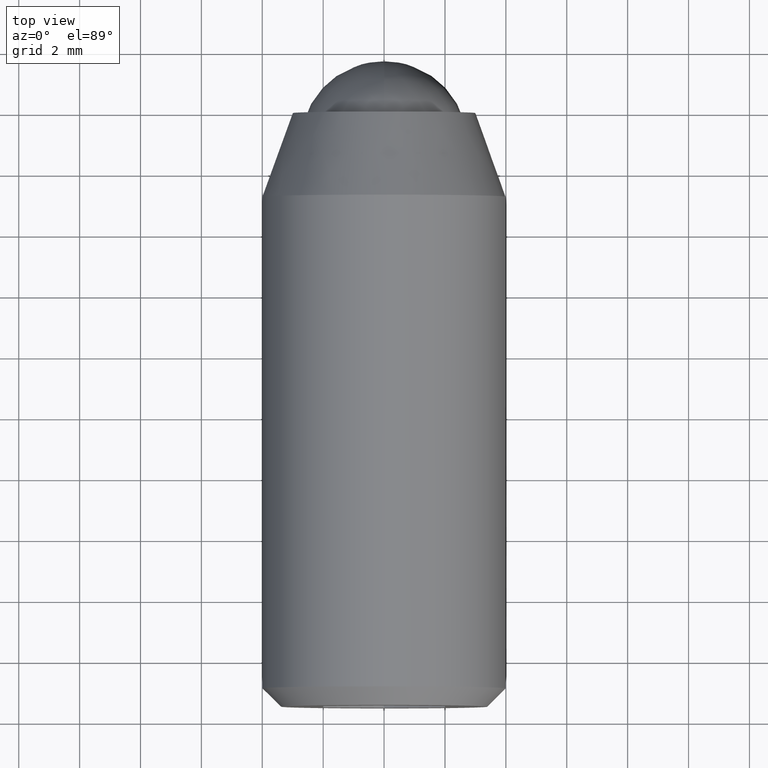
[diagram: clean part render]
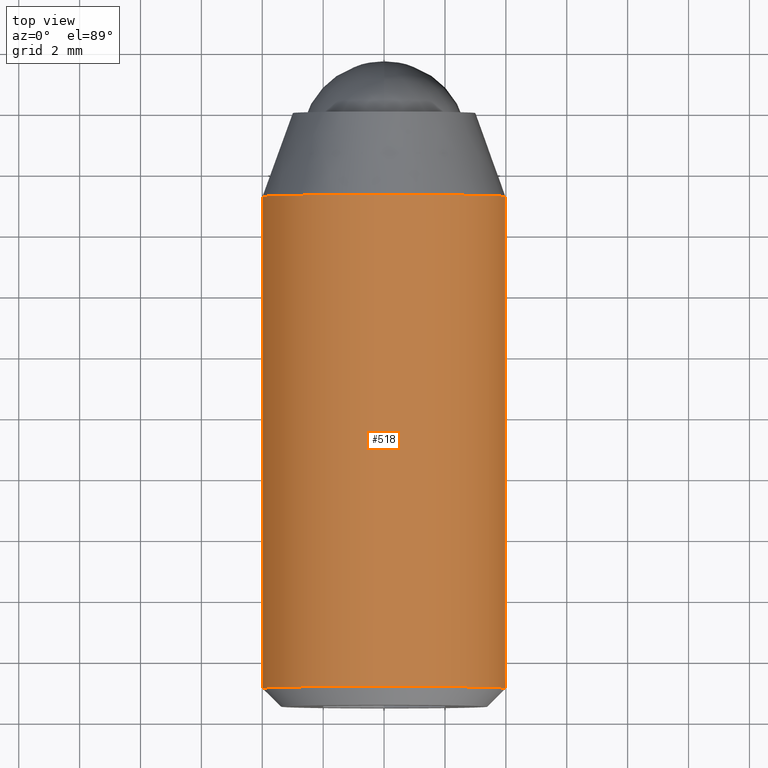
[diagram: same view with one face highlighted and labeled with its STEP entity id]
A machine part, top view. The second image highlights one B-rep face of the part: STEP entity #518.
In plain terms, the highlighted face is a freeform B-spline surface patch.
Its self-contained STEP definition (entity closure, byte-faithful):
#309=CARTESIAN_POINT('',(-3.992539385356825,-2.747476995765231,0.244190999084494));
#310=VERTEX_POINT('',#309);
#316=CARTESIAN_POINT('',(0.0,-2.747477000000000,3.999999999999999));
#317=VERTEX_POINT('',#316);
#318=CARTESIAN_POINT('',(0.0,-2.747477000000000,3.999999999999999));
#319=CARTESIAN_POINT('',(-3.762827250393930,-2.747477000000000,4.000000000000000));
#320=CARTESIAN_POINT('',(-3.992539385356825,-2.747476995765231,0.244190999084494));
#328=(BOUNDED_CURVE()B_SPLINE_CURVE(2,(#318,#319,#320),.UNSPECIFIED.,.F.,.U.)B_SPLINE_CURVE_WITH_KNOTS((3,3),(0.500000000000000,0.739333098763761),.UNSPECIFIED.)CURVE()GEOMETRIC_REPRESENTATION_ITEM()RATIONAL_B_SPLINE_CURVE((1.0,0.719603833337937,0.976072334265566))REPRESENTATION_ITEM(''));
#329=EDGE_CURVE('',#317,#310,#328,.T.);
#331=CARTESIAN_POINT('',(3.973877514733711,-2.747477000000000,0.456396207096037));
#332=VERTEX_POINT('',#331);
#333=CARTESIAN_POINT('',(3.973877514733711,-2.747477000000000,0.456396207096037));
#334=CARTESIAN_POINT('',(3.566897852045294,-2.747477000000000,3.999999999999999));
#335=CARTESIAN_POINT('',(0.0,-2.747477000000000,3.999999999999999));
#343=(BOUNDED_CURVE()B_SPLINE_CURVE(2,(#333,#334,#335),.UNSPECIFIED.,.F.,.U.)B_SPLINE_CURVE_WITH_KNOTS((3,3),(0.269767481110062,0.500000000000000),.UNSPECIFIED.)CURVE()GEOMETRIC_REPRESENTATION_ITEM()RATIONAL_B_SPLINE_CURVE((0.957344278464731,0.730265825867189,1.0))REPRESENTATION_ITEM(''));
#344=EDGE_CURVE('',#332,#317,#343,.T.);
#435=CARTESIAN_POINT('',(3.980316091158765,-2.343663925000000,0.400335821016026));
#436=CARTESIAN_POINT('',(3.977103598420194,-2.343663925000000,0.428306846225810));
#437=CARTESIAN_POINT('',(3.591260610344325,-2.343663924999999,3.787823839652829));
#438=CARTESIAN_POINT('',(0.244194158139428,-2.343663924999999,3.992539193687466));
#439=CARTESIAN_POINT('',(-3.748345035548039,-2.343663925000000,4.236733351826894));
#440=CARTESIAN_POINT('',(-3.994157945303674,-2.343663924999997,0.217727803162699));
#441=CARTESIAN_POINT('',(-3.995767831718254,-2.343663925000000,0.191406392951410));
#442=CARTESIAN_POINT('',(3.980316091158765,-19.313908401875008,0.400335821016026));
#443=CARTESIAN_POINT('',(3.977103598420194,-19.313908401874997,0.428306846225810));
#444=CARTESIAN_POINT('',(3.591260610344325,-19.313908401874997,3.787823839652829));
#445=CARTESIAN_POINT('',(0.244194158139428,-19.313908401875000,3.992539193687466));
#446=CARTESIAN_POINT('',(-3.748345035548039,-19.313908401875004,4.236733351826894));
#447=CARTESIAN_POINT('',(-3.994157945303674,-19.313908401874990,0.217727803162699));
#448=CARTESIAN_POINT('',(-3.995767831718254,-19.313908401875004,0.191406392951410));
#456=(BOUNDED_SURFACE()B_SPLINE_SURFACE(2,1,((#435,#442),(#436,#443),(#437,#444),(#438,#445),(#439,#446),(#440,#447),(#441,#448)),.UNSPECIFIED.,.F.,.F.,.U.)B_SPLINE_SURFACE_WITH_KNOTS((3,1,2,1,3),(2,2),(0.0,0.062304910480394,5.894431868693570,12.521848866663090,12.584150347148990),(0.0,16.970244476875010),.UNSPECIFIED.)GEOMETRIC_REPRESENTATION_ITEM()RATIONAL_B_SPLINE_SURFACE(((0.942326293533280,0.942326293533280),(0.940233622859939,0.940233622859939),(0.742253967444162,0.742253967444162),(1.0,1.0),(0.707106781186548,0.707106781186548),(1.002753362458097,1.002753362458097),(1.005506724916193,1.005506724916193)))REPRESENTATION_ITEM('')SURFACE());
#457=CARTESIAN_POINT('',(3.973876773741293,-18.899999999999999,0.456402658975039));
#458=VERTEX_POINT('',#457);
#459=CARTESIAN_POINT('',(0.0,-18.899999999999999,3.999999999999999));
#460=VERTEX_POINT('',#459);
#461=CARTESIAN_POINT('',(3.973876773741293,-18.900000000000002,0.456402658975039));
#462=CARTESIAN_POINT('',(3.566892022851084,-18.899999999999999,3.999999999999999));
#463=CARTESIAN_POINT('',(0.0,-18.899999999999999,3.999999999999999));
#471=(BOUNDED_CURVE()B_SPLINE_CURVE(2,(#461,#462,#463),.UNSPECIFIED.,.F.,.U.)B_SPLINE_CURVE_WITH_KNOTS((3,3),(0.269767755877767,0.500000000000000),.UNSPECIFIED.)CURVE()GEOMETRIC_REPRESENTATION_ITEM()RATIONAL_B_SPLINE_CURVE((0.957343736458379,0.730266147777579,1.0))REPRESENTATION_ITEM(''));
#472=EDGE_CURVE('',#458,#460,#471,.T.);
#473=ORIENTED_EDGE('',*,*,#472,.F.);
#474=CARTESIAN_POINT('',(3.973877514733711,-2.747477000000000,0.456396207096037));
#475=CARTESIAN_POINT('',(3.973876773741293,-18.899999999999999,0.456402658975039));
#476=QUASI_UNIFORM_CURVE('',1,(#474,#475),.UNSPECIFIED.,.F.,.U.);
#477=EDGE_CURVE('',#332,#458,#476,.T.);
#478=ORIENTED_EDGE('',*,*,#477,.F.);
#479=ORIENTED_EDGE('',*,*,#344,.T.);
#480=ORIENTED_EDGE('',*,*,#329,.T.);
#481=CARTESIAN_POINT('',(-3.992539218760148,-18.899999999999999,0.244193748204033));
#482=VERTEX_POINT('',#481);
#483=CARTESIAN_POINT('',(-3.992539385356825,-2.747476995765231,0.244190999084494));
#484=CARTESIAN_POINT('',(-3.992539218760148,-18.899999999999999,0.244193748204033));
#485=QUASI_UNIFORM_CURVE('',1,(#483,#484),.UNSPECIFIED.,.F.,.U.);
#486=EDGE_CURVE('',#310,#482,#485,.T.);
#487=ORIENTED_EDGE('',*,*,#486,.T.);
#488=CARTESIAN_POINT('',(-3.987669334934627,-18.899999999994701,0.313836382952172));
#489=VERTEX_POINT('',#488);
#490=CARTESIAN_POINT('',(-3.987669334934627,-18.899999999994701,0.313836382952172));
#491=CARTESIAN_POINT('',(-3.990408175777355,-18.899999999999999,0.279036110406021));
#492=CARTESIAN_POINT('',(-3.992539218760148,-18.899999999999995,0.244193748204032));
#500=(BOUNDED_CURVE()B_SPLINE_CURVE(2,(#490,#491,#492),.UNSPECIFIED.,.F.,.U.)B_SPLINE_CURVE_WITH_KNOTS((3,3),(0.736331300629296,0.739332997674577),.UNSPECIFIED.)CURVE()GEOMETRIC_REPRESENTATION_ITEM()RATIONAL_B_SPLINE_CURVE((0.969723356164571,0.972855512534206,0.976072117612039))REPRESENTATION_ITEM(''));
#501=EDGE_CURVE('',#489,#482,#500,.T.);
#502=ORIENTED_EDGE('',*,*,#501,.F.);
#503=CARTESIAN_POINT('',(0.0,-18.899999999999999,3.999999999999999));
#504=CARTESIAN_POINT('',(-3.697561966557721,-18.900000000000006,4.0));
#505=CARTESIAN_POINT('',(-3.987669334934627,-18.899999999994701,0.313836382952172));
#513=(BOUNDED_CURVE()B_SPLINE_CURVE(2,(#503,#504,#505),.UNSPECIFIED.,.F.,.U.)B_SPLINE_CURVE_WITH_KNOTS((3,3),(0.500000000000000,0.736331300629296),.UNSPECIFIED.)CURVE()GEOMETRIC_REPRESENTATION_ITEM()RATIONAL_B_SPLINE_CURVE((1.0,0.723120658609264,0.969723356164571))REPRESENTATION_ITEM(''));
#514=EDGE_CURVE('',#460,#489,#513,.T.);
#515=ORIENTED_EDGE('',*,*,#514,.F.);
#516=EDGE_LOOP('',(#473,#478,#479,#480,#487,#502,#515));
#517=FACE_OUTER_BOUND('',#516,.T.);
#518=ADVANCED_FACE('',(#517),#456,.T.);